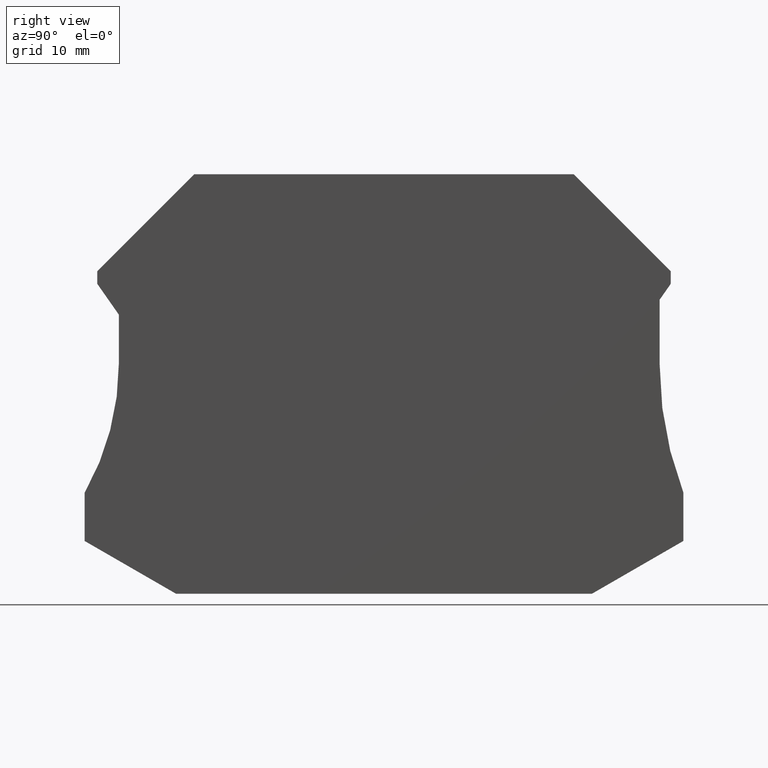
[diagram: clean part render]
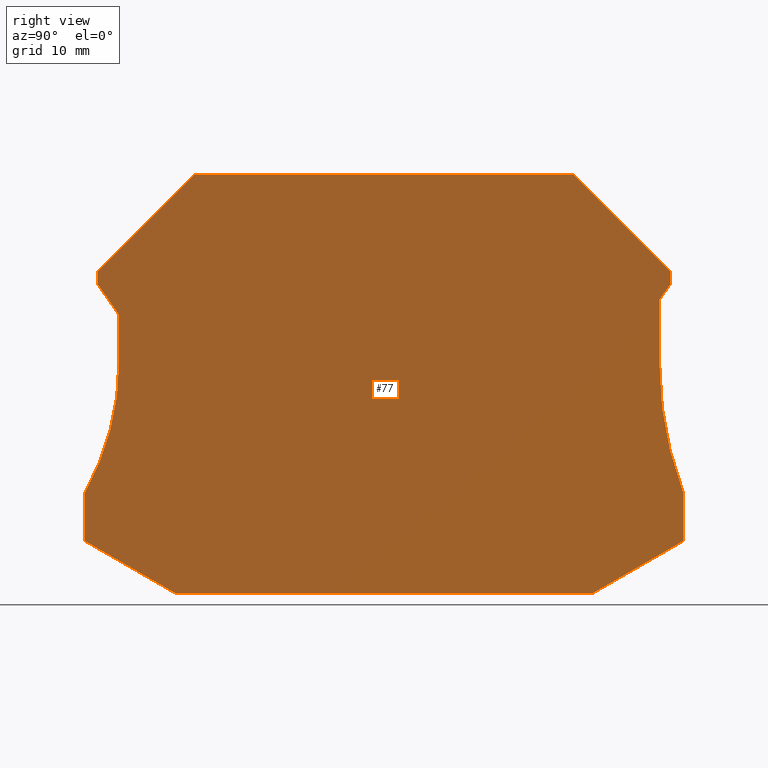
[diagram: same view with one face highlighted and labeled with its STEP entity id]
A machine part, right view. The second image highlights one B-rep face of the part: STEP entity #77.
In plain terms, the highlighted planar face has unit normal (1, -0, 0).
Its self-contained STEP definition (entity closure, byte-faithful):
#77=ADVANCED_FACE('',(#148),#149,.T.);
#148=FACE_OUTER_BOUND('',#210,.T.);
#149=PLANE('',#211);
#210=EDGE_LOOP('',(#363,#364,#365,#366,#367,#368,#369,#370,#371,#372,#373,#374,#375,#376,#377,#378));
#211=AXIS2_PLACEMENT_3D('',#379,#380,#381);
#363=ORIENTED_EDGE('',*,*,#407,.F.);
#364=ORIENTED_EDGE('',*,*,#431,.F.);
#365=ORIENTED_EDGE('',*,*,#447,.T.);
#366=ORIENTED_EDGE('',*,*,#442,.T.);
#367=ORIENTED_EDGE('',*,*,#439,.F.);
#368=ORIENTED_EDGE('',*,*,#436,.F.);
#369=ORIENTED_EDGE('',*,*,#434,.T.);
#370=ORIENTED_EDGE('',*,*,#401,.T.);
#371=ORIENTED_EDGE('',*,*,#413,.T.);
#372=ORIENTED_EDGE('',*,*,#416,.F.);
#373=ORIENTED_EDGE('',*,*,#420,.F.);
#374=ORIENTED_EDGE('',*,*,#426,.F.);
#375=ORIENTED_EDGE('',*,*,#424,.F.);
#376=ORIENTED_EDGE('',*,*,#445,.F.);
#377=ORIENTED_EDGE('',*,*,#410,.F.);
#378=ORIENTED_EDGE('',*,*,#428,.T.);
#379=CARTESIAN_POINT('',(2.20000000000036,32.7064406857822,2.60070502397922));
#380=DIRECTION('',(1.0,-1.11631705655199E-028,1.05655906439346E-014));
#381=DIRECTION('',(6.27781712017518E-043,1.0,1.05655906439346E-014));
#401=EDGE_CURVE('',#484,#485,#486,.T.);
#407=EDGE_CURVE('',#492,#490,#494,.T.);
#410=EDGE_CURVE('',#496,#498,#499,.T.);
#413=EDGE_CURVE('',#485,#502,#503,.T.);
#416=EDGE_CURVE('',#506,#502,#507,.T.);
#420=EDGE_CURVE('',#510,#506,#512,.T.);
#424=EDGE_CURVE('',#516,#514,#518,.T.);
#426=EDGE_CURVE('',#514,#510,#520,.T.);
#428=EDGE_CURVE('',#496,#490,#522,.T.);
#431=EDGE_CURVE('',#524,#492,#526,.T.);
#434=EDGE_CURVE('',#528,#484,#530,.T.);
#436=EDGE_CURVE('',#528,#532,#533,.T.);
#439=EDGE_CURVE('',#532,#536,#537,.T.);
#442=EDGE_CURVE('',#540,#536,#541,.T.);
#445=EDGE_CURVE('',#498,#516,#544,.T.);
#447=EDGE_CURVE('',#524,#540,#546,.T.);
#484=VERTEX_POINT('',#597);
#485=VERTEX_POINT('',#598);
#486=LINE('',#599,#600);
#490=VERTEX_POINT('',#606);
#492=VERTEX_POINT('',#609);
#494=LINE('',#612,#613);
#496=VERTEX_POINT('',#615);
#498=VERTEX_POINT('',#618);
#499=CIRCLE('',#619,25.0);
#502=VERTEX_POINT('',#623);
#503=LINE('',#624,#625);
#506=VERTEX_POINT('',#629);
#507=LINE('',#630,#631);
#510=VERTEX_POINT('',#635);
#512=LINE('',#638,#639);
#514=VERTEX_POINT('',#641);
#516=VERTEX_POINT('',#644);
#518=LINE('',#647,#648);
#520=LINE('',#650,#651);
#522=LINE('',#653,#654);
#524=VERTEX_POINT('',#656);
#526=LINE('',#659,#660);
#528=VERTEX_POINT('',#662);
#530=LINE('',#665,#666);
#532=VERTEX_POINT('',#668);
#533=LINE('',#669,#670);
#536=VERTEX_POINT('',#674);
#537=CIRCLE('',#675,34.0);
#540=VERTEX_POINT('',#679);
#541=LINE('',#680,#681);
#544=LINE('',#685,#686);
#546=LINE('',#688,#689);
#597=CARTESIAN_POINT('',(2.20000000000007,55.5999999999994,29.4000000000031));
#598=CARTESIAN_POINT('',(2.20000000000006,55.5999999999994,30.5999999999986));
#599=CARTESIAN_POINT('',(2.20000000000013,55.5999999999994,24.3638730000074));
#600=VECTOR('',#712,1.0);
#606=CARTESIAN_POINT('',(2.20000000000033,2.22044604925031E-014,5.00803263805069));
#609=CARTESIAN_POINT('',(2.20000000000038,8.67416697506799,-4.19220214098459E-013));
#612=CARTESIAN_POINT('',(2.20000000000059,41.9906041739492,-19.2352539852133));
#613=VECTOR('',#717,1.0);
#615=CARTESIAN_POINT('',(2.20000000000028,-2.57571741713036E-014,9.57370696437979));
#618=CARTESIAN_POINT('',(2.20000000000015,3.24999999999943,21.9000000000002));
#619=AXIS2_PLACEMENT_3D('',#719,#720,#721);
#623=CARTESIAN_POINT('',(2.19999999999996,46.3999999999974,39.8000000000025));
#624=CARTESIAN_POINT('',(2.20000000000013,61.8361269999891,24.3638730000074));
#625=VECTOR('',#723,1.0);
#629=CARTESIAN_POINT('',(2.19999999999996,10.4000000000012,39.8000000000021));
#630=CARTESIAN_POINT('',(2.19999999999996,41.9906041739486,39.8000000000024));
#631=VECTOR('',#725,1.0);
#635=CARTESIAN_POINT('',(2.20000000000006,1.19999999999934,30.599999999998));
#638=CARTESIAN_POINT('',(2.20000000000013,-5.03612699999033,24.3638730000067));
#639=VECTOR('',#728,1.0);
#641=CARTESIAN_POINT('',(2.20000000000007,1.19999999999935,29.4000000000025));
#644=CARTESIAN_POINT('',(2.20000000000011,3.2499999999994,26.4722965861811));
#647=CARTESIAN_POINT('',(2.20000000000013,4.72633408877784,24.3638730000068));
#648=VECTOR('',#731,1.0);
#650=CARTESIAN_POINT('',(2.20000000000013,1.19999999999941,24.3638730000068));
#651=VECTOR('',#732,1.0);
#653=CARTESIAN_POINT('',(2.20000000000013,-1.82076576038526E-013,24.3638730000068));
#654=VECTOR('',#733,1.0);
#656=CARTESIAN_POINT('',(2.20000000000038,48.1258330249321,-7.105427357601E-015));
#659=CARTESIAN_POINT('',(2.20000000000038,41.990604173949,-7.105427357601E-014));
#660=VECTOR('',#735,1.0);
#662=CARTESIAN_POINT('',(2.20000000000009,54.5499999999994,27.9004445929238));
#665=CARTESIAN_POINT('',(2.20000000000013,52.073665911221,24.3638730000073));
#666=VECTOR('',#737,1.0);
#668=CARTESIAN_POINT('',(2.20000000000015,54.5499999999995,21.7621318441144));
#669=CARTESIAN_POINT('',(2.20000000000013,54.5499999999994,24.3638730000074));
#670=VECTOR('',#738,1.0);
#674=CARTESIAN_POINT('',(2.20000000000028,56.8,9.59917578894328));
#675=AXIS2_PLACEMENT_3D('',#740,#741,#742);
#679=CARTESIAN_POINT('',(2.20000000000033,56.8,5.00803263805128));
#680=CARTESIAN_POINT('',(2.20000000000013,56.7999999999998,24.3638730000074));
#681=VECTOR('',#744,1.0);
#685=CARTESIAN_POINT('',(2.20000000000013,3.24999999999942,24.3638730000068));
#686=VECTOR('',#746,1.0);
#688=CARTESIAN_POINT('',(2.20000000000042,41.990604173949,-3.54217602865517));
#689=VECTOR('',#747,1.0);
#712=DIRECTION('',(-1.05655906439346E-014,-1.05655906439346E-014,1.0));
#717=DIRECTION('',(-5.2827953219673E-015,-0.866025403784444,0.499999999999991));
#719=CARTESIAN_POINT('',(2.20000000000015,-21.7500000000005,21.8999999999999));
#720=DIRECTION('',(1.0,-1.11631705655199E-028,1.05655906439346E-014));
#721=DIRECTION('',(6.02670443536817E-043,1.0,1.05655906439346E-014));
#723=DIRECTION('',(-7.47100079156816E-015,-0.707106781186473,0.707106781186622));
#725=DIRECTION('',(1.70209354362047E-042,1.0,1.05655906439344E-014));
#728=DIRECTION('',(-7.47100079156816E-015,0.707106781186458,0.707106781186637));
#731=DIRECTION('',(-8.65482517509968E-015,-0.573576436351055,0.819152044288986));
#732=DIRECTION('',(-1.05655906439346E-014,-1.05655906439346E-014,1.0));
#733=DIRECTION('',(1.05655906439346E-014,1.0537835068319E-014,-1.0));
#735=DIRECTION('',(0.0,-1.0,-1.05655906439346E-014));
#737=DIRECTION('',(-8.65482517509968E-015,0.573576436351037,0.819152044288998));
#738=DIRECTION('',(1.05655906439346E-014,1.05655906439346E-014,-1.0));
#740=CARTESIAN_POINT('',(2.20000000000015,88.5499999999995,21.7621318441147));
#741=DIRECTION('',(1.0,-1.11631705655199E-028,1.05655906439346E-014));
#742=DIRECTION('',(6.11955282302791E-043,1.0,1.05655906439346E-014));
#744=DIRECTION('',(-1.05655906439346E-014,-1.05655906439346E-014,1.0));
#746=DIRECTION('',(-1.05655906439346E-014,-1.05655906439346E-014,1.0));
#747=DIRECTION('',(-5.2827953219673E-015,0.866025403784433,0.500000000000009));